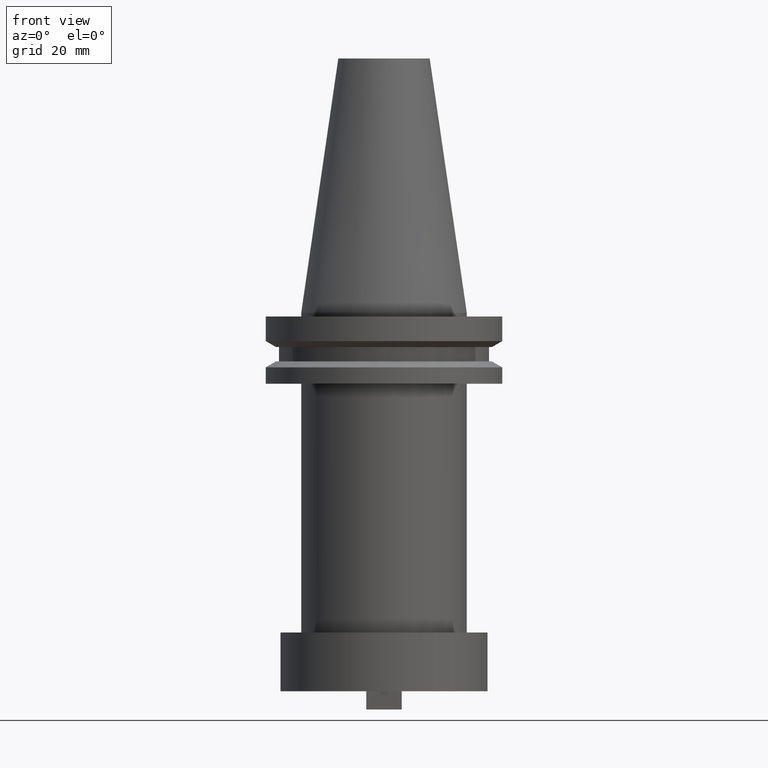
[diagram: clean part render]
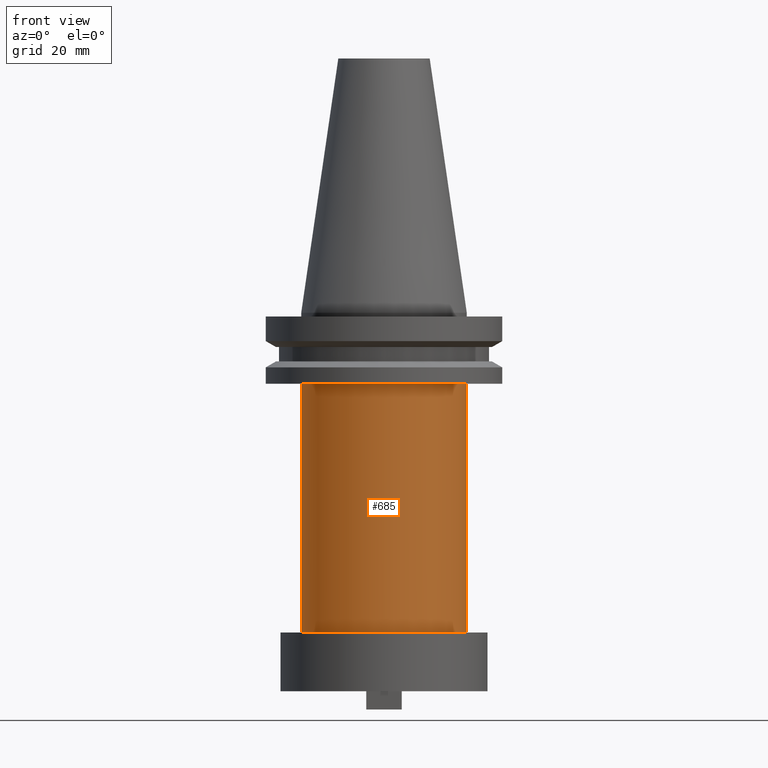
[diagram: same view with one face highlighted and labeled with its STEP entity id]
A machine part, front view. The second image highlights one B-rep face of the part: STEP entity #685.
In plain terms, the highlighted cylindrical surface (partial cylindrical patch) has radius 22.225 mm, axis along (-0, -0, 1).
Its self-contained STEP definition (entity closure, byte-faithful):
#4 = CYLINDRICAL_SURFACE ( 'NONE', #814, 22.22500000000000142 ) ;
#17 = VERTEX_POINT ( 'NONE', #469 ) ;
#103 = AXIS2_PLACEMENT_3D ( 'NONE', #110, #1053, #865 ) ;
#105 = CARTESIAN_POINT ( 'NONE',  ( 0.000000000000000000, 0.000000000000000000, 68.25000000000000000 ) ) ;
#110 = CARTESIAN_POINT ( 'NONE',  ( 0.000000000000000000, 0.000000000000000000, -19.04999999999999716 ) ) ;
#117 = EDGE_LOOP ( 'NONE', ( #890, #807, #912, #155 ) ) ;
#155 = ORIENTED_EDGE ( 'NONE', *, *, #773, .F. ) ;
#230 = LINE ( 'NONE', #1072, #802 ) ;
#258 = CIRCLE ( 'NONE', #457, 22.22500000000000142 ) ;
#318 = VERTEX_POINT ( 'NONE', #761 ) ;
#356 = DIRECTION ( 'NONE',  ( -0.000000000000000000, -0.000000000000000000, 1.000000000000000000 ) ) ;
#457 = AXIS2_PLACEMENT_3D ( 'NONE', #711, #538, #952 ) ;
#469 = CARTESIAN_POINT ( 'NONE',  ( 22.22500000000000142, 0.000000000000000000, -85.84999999999999432 ) ) ;
#497 = CIRCLE ( 'NONE', #103, 22.22500000000000142 ) ;
#522 = FACE_OUTER_BOUND ( 'NONE', #117, .T. ) ;
#538 = DIRECTION ( 'NONE',  ( -0.000000000000000000, -0.000000000000000000, 1.000000000000000000 ) ) ;
#541 = EDGE_CURVE ( 'NONE', #17, #1030, #230, .T. ) ;
#545 = DIRECTION ( 'NONE',  ( -0.000000000000000000, -0.000000000000000000, 1.000000000000000000 ) ) ;
#685 = ADVANCED_FACE ( 'NONE', ( #522 ), #4, .T. ) ;
#688 = DIRECTION ( 'NONE',  ( 1.000000000000000000, 0.000000000000000000, 0.000000000000000000 ) ) ;
#711 = CARTESIAN_POINT ( 'NONE',  ( 0.000000000000000000, 0.000000000000000000, -85.84999999999999432 ) ) ;
#722 = CARTESIAN_POINT ( 'NONE',  ( -22.22500000000000142, 2.721777511104992849E-15, 68.25000000000000000 ) ) ;
#723 = VECTOR ( 'NONE', #545, 1000.000000000000000 ) ;
#726 = CARTESIAN_POINT ( 'NONE',  ( -22.22500000000000142, 2.721777511104992849E-15, -19.04999999999999716 ) ) ;
#761 = CARTESIAN_POINT ( 'NONE',  ( -22.22500000000000142, 2.721777511104992849E-15, -85.84999999999999432 ) ) ;
#773 = EDGE_CURVE ( 'NONE', #864, #1030, #497, .T. ) ;
#802 = VECTOR ( 'NONE', #1077, 1000.000000000000000 ) ;
#807 = ORIENTED_EDGE ( 'NONE', *, *, #1016, .T. ) ;
#814 = AXIS2_PLACEMENT_3D ( 'NONE', #105, #356, #688 ) ;
#864 = VERTEX_POINT ( 'NONE', #726 ) ;
#865 = DIRECTION ( 'NONE',  ( 1.000000000000000000, 0.000000000000000000, 0.000000000000000000 ) ) ;
#869 = CARTESIAN_POINT ( 'NONE',  ( 22.22500000000000142, 0.000000000000000000, -19.04999999999999716 ) ) ;
#874 = LINE ( 'NONE', #722, #723 ) ;
#890 = ORIENTED_EDGE ( 'NONE', *, *, #1000, .F. ) ;
#912 = ORIENTED_EDGE ( 'NONE', *, *, #541, .T. ) ;
#952 = DIRECTION ( 'NONE',  ( 1.000000000000000000, 0.000000000000000000, 0.000000000000000000 ) ) ;
#1000 = EDGE_CURVE ( 'NONE', #318, #864, #874, .T. ) ;
#1016 = EDGE_CURVE ( 'NONE', #318, #17, #258, .T. ) ;
#1030 = VERTEX_POINT ( 'NONE', #869 ) ;
#1053 = DIRECTION ( 'NONE',  ( -0.000000000000000000, -0.000000000000000000, 1.000000000000000000 ) ) ;
#1072 = CARTESIAN_POINT ( 'NONE',  ( 22.22500000000000142, 0.000000000000000000, 68.25000000000000000 ) ) ;
#1077 = DIRECTION ( 'NONE',  ( -0.000000000000000000, -0.000000000000000000, 1.000000000000000000 ) ) ;